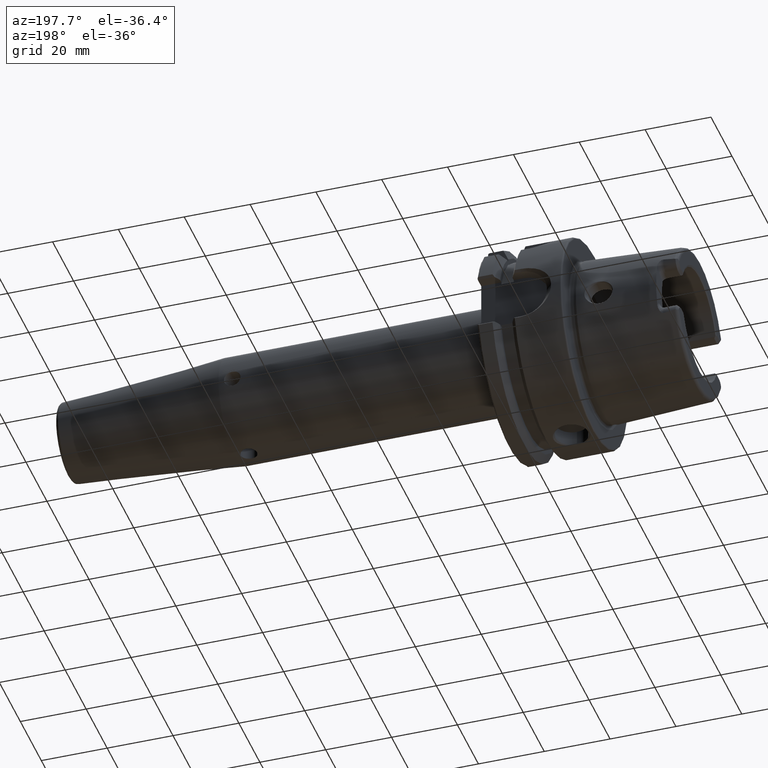
[diagram: clean part render]
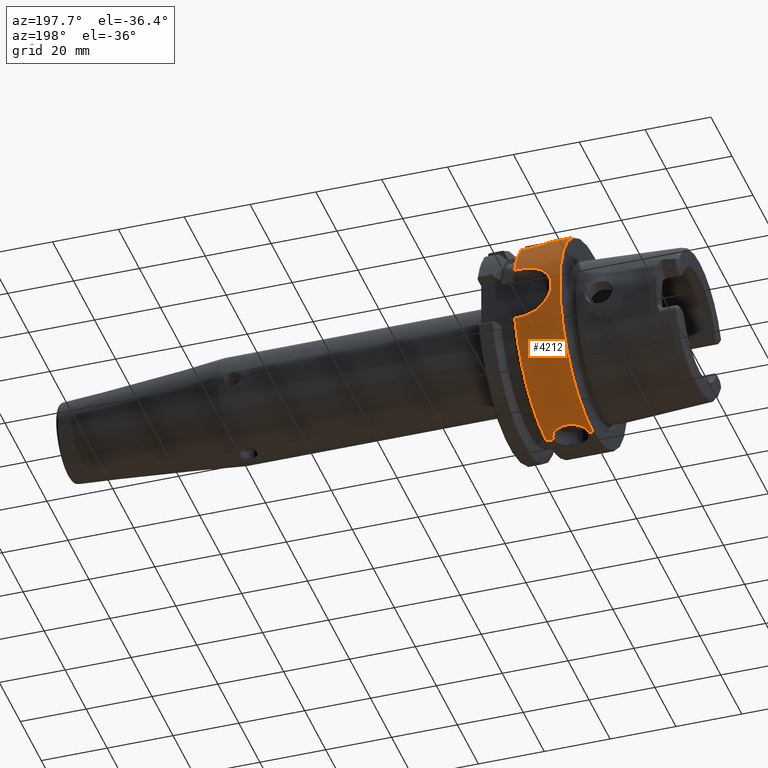
[diagram: same view with one face highlighted and labeled with its STEP entity id]
A machine part, auxiliary view. The second image highlights one B-rep face of the part: STEP entity #4212.
In plain terms, the highlighted cylindrical surface (partial cylindrical patch) has radius 31.5 mm, axis along (1, 0, 0).
Its self-contained STEP definition (entity closure, byte-faithful):
#923=DIRECTION('',(-1.E0,-1.152682623977E-12,0.E0));
#924=VECTOR('',#923,1.412250090457E1);
#925=CARTESIAN_POINT('',(1.462250090457E1,0.E0,3.15E1));
#926=LINE('',#925,#924);
#982=DIRECTION('',(-1.E0,0.E0,0.E0));
#983=VECTOR('',#982,2.122500904567E0);
#984=CARTESIAN_POINT('',(1.462250090457E1,0.E0,-3.15E1));
#985=LINE('',#984,#983);
#1006=DIRECTION('',(-1.E0,-3.500340280064E-12,0.E0));
#1007=VECTOR('',#1006,1.E0);
#1008=CARTESIAN_POINT('',(1.5E0,0.E0,-3.15E1));
#1009=LINE('',#1008,#1007);
#1023=CARTESIAN_POINT('',(5.E-1,0.E0,0.E0));
#1024=DIRECTION('',(-1.E0,0.E0,0.E0));
#1025=DIRECTION('',(0.E0,0.E0,1.E0));
#1026=AXIS2_PLACEMENT_3D('',#1023,#1024,#1025);
#1028=CARTESIAN_POINT('',(1.25E1,0.E0,-3.15E1));
#1029=CARTESIAN_POINT('',(1.25E1,3.591179016958E-1,-3.15E1));
#1030=CARTESIAN_POINT('',(1.241877060514E1,1.049176716839E0,-3.148780969961E1));
#1031=CARTESIAN_POINT('',(1.208888151745E1,2.007789554012E0,-3.144033464909E1));
#1032=CARTESIAN_POINT('',(1.158303499725E1,2.863034778919E0,-3.137310892711E1));
#1033=CARTESIAN_POINT('',(1.090471174494E1,3.623449915998E0,-3.129357789396E1));
#1034=CARTESIAN_POINT('',(1.006459553458E1,4.261252464667E0,-3.121215533395E1));
#1035=CARTESIAN_POINT('',(9.088026015445E0,4.740243014212E0,-3.114207085875E1));
#1036=CARTESIAN_POINT('',(8.055144265708E0,5.024239826024E0,-3.109689332850E1));
#1037=CARTESIAN_POINT('',(6.991255526220E0,5.118492193282E0,-3.108133183436E1));
#1038=CARTESIAN_POINT('',(5.929304176130E0,5.021338939589E0,-3.109736870211E1));
#1039=CARTESIAN_POINT('',(4.897654838810E0,4.734729497616E0,-3.114291627253E1));
#1040=CARTESIAN_POINT('',(3.923322314250E0,4.253904907756E0,-3.121317796639E1));
#1041=CARTESIAN_POINT('',(3.081999010349E0,3.611475324829E0,-3.129499592086E1));
#1042=CARTESIAN_POINT('',(2.405524185626E0,2.847462453288E0,-3.137455446046E1));
#1043=CARTESIAN_POINT('',(1.903178736620E0,1.990202842849E0,-3.144144823364E1));
#1044=CARTESIAN_POINT('',(1.578888425808E0,1.035924841317E0,-3.148816306394E1));
#1045=CARTESIAN_POINT('',(1.5E0,3.538898695661E-1,-3.15E1));
#1046=CARTESIAN_POINT('',(1.5E0,0.E0,-3.15E1));
#1048=CARTESIAN_POINT('',(1.462250090457E1,0.E0,0.E0));
#1049=DIRECTION('',(1.E0,0.E0,0.E0));
#1050=DIRECTION('',(0.E0,0.E0,-1.E0));
#1051=AXIS2_PLACEMENT_3D('',#1048,#1049,#1050);
#1053=DIRECTION('',(1.E0,0.E0,0.E0));
#1054=VECTOR('',#1053,1.622500904567E0);
#1055=CARTESIAN_POINT('',(1.3E1,3.030257052423E1,-8.602570524226E0));
#1056=LINE('',#1055,#1054);
#1057=CARTESIAN_POINT('',(1.3E1,3.030257052423E1,-8.602570524226E0));
#1058=CARTESIAN_POINT('',(1.235541835287E1,3.030257052423E1,-8.602570524226E0));
#1059=CARTESIAN_POINT('',(1.109372968304E1,3.033423153458E1,-8.492196080456E0));
#1060=CARTESIAN_POINT('',(9.248264611222E0,3.046933517118E1,-8.000909647176E0));
#1061=CARTESIAN_POINT('',(7.555884268441E0,3.066964465669E1,-7.205952655409E0));
#1062=CARTESIAN_POINT('',(6.088763746981E0,3.090017764345E1,-6.155508171550E0));
#1063=CARTESIAN_POINT('',(4.907613818030E0,3.112281076593E1,-4.919449967846E0));
#1064=CARTESIAN_POINT('',(4.035296228860E0,3.130752418742E1,-3.569140413675E0));
#1065=CARTESIAN_POINT('',(3.467126615443E0,3.143679507039E1,-2.158791178254E0));
#1066=CARTESIAN_POINT('',(3.188348549717E0,3.150274417315E1,
-7.219689524247E-1));
#1067=CARTESIAN_POINT('',(3.188351309952E0,3.150274350794E1,7.219960352426E-1));
#1068=CARTESIAN_POINT('',(3.467133324851E0,3.143679352027E1,2.158810680109E0));
#1069=CARTESIAN_POINT('',(4.035299491244E0,3.130752347964E1,3.569145798460E0));
#1070=CARTESIAN_POINT('',(4.907619317801E0,3.112280964165E1,4.919457341111E0));
#1071=CARTESIAN_POINT('',(6.088770538561E0,3.090017648968E1,6.155513669787E0));
#1072=CARTESIAN_POINT('',(7.555887404237E0,3.066964426780E1,7.205954206590E0));
#1073=CARTESIAN_POINT('',(9.248266760131E0,3.046933495101E1,8.000910488809E0));
#1074=CARTESIAN_POINT('',(1.109373293521E1,3.033423138205E1,8.492196614850E0));
#1075=CARTESIAN_POINT('',(1.235541965801E1,3.030257052423E1,8.602570524226E0));
#1076=CARTESIAN_POINT('',(1.3E1,3.030257052423E1,8.602570524226E0));
#1078=DIRECTION('',(1.E0,0.E0,0.E0));
#1079=VECTOR('',#1078,1.622500904567E0);
#1080=CARTESIAN_POINT('',(1.3E1,3.030257052423E1,8.602570524226E0));
#1081=LINE('',#1080,#1079);
#1082=CARTESIAN_POINT('',(1.462250090457E1,0.E0,0.E0));
#1083=DIRECTION('',(1.E0,0.E0,0.E0));
#1084=DIRECTION('',(0.E0,9.619863658485E-1,2.730974769596E-1));
#1085=AXIS2_PLACEMENT_3D('',#1082,#1083,#1084);
#1087=DIRECTION('',(1.E0,0.E0,0.E0));
#1088=VECTOR('',#1087,1.622500904567E0);
#1089=CARTESIAN_POINT('',(1.3E1,2.433618704728E1,2.E1));
#1090=LINE('',#1089,#1088);
#1091=CARTESIAN_POINT('',(5.888286096344E0,2.E1,2.433618704728E1));
#1092=CARTESIAN_POINT('',(5.979841110901E0,2.021624479285E1,2.415847244274E1));
#1093=CARTESIAN_POINT('',(6.178964055433E0,2.063505528873E1,2.380463264103E1));
#1094=CARTESIAN_POINT('',(6.529290349012E0,2.122336114799E1,2.328123619400E1));
#1095=CARTESIAN_POINT('',(6.934185786704E0,2.177041926319E1,2.277004743860E1));
#1096=CARTESIAN_POINT('',(7.395470581921E0,2.227363444044E1,2.227755184076E1));
#1097=CARTESIAN_POINT('',(7.915511267172E0,2.273117164906E1,2.180996325233E1));
#1098=CARTESIAN_POINT('',(8.494651142790E0,2.313957745525E1,2.137559509570E1));
#1099=CARTESIAN_POINT('',(9.133373456560E0,2.349590004479E1,2.098269866103E1));
#1100=CARTESIAN_POINT('',(9.827602999986E0,2.379530983774E1,2.064193255373E1));
#1101=CARTESIAN_POINT('',(1.057250362730E1,2.403390563889E1,2.036307977068E1));
#1102=CARTESIAN_POINT('',(1.135757184338E1,2.420737036833E1,2.015610491514E1));
#1103=CARTESIAN_POINT('',(1.217313527813E1,2.431273139834E1,2.002859294578E1));
#1104=CARTESIAN_POINT('',(1.272260838370E1,2.433618704728E1,2.E1));
#1105=CARTESIAN_POINT('',(1.3E1,2.433618704728E1,2.E1));
#1107=DIRECTION('',(1.E0,0.E0,0.E0));
#1108=VECTOR('',#1107,8.734214808223E0);
#1109=CARTESIAN_POINT('',(5.888286096344E0,2.E1,2.433618704728E1));
#1110=LINE('',#1109,#1108);
#1111=CARTESIAN_POINT('',(1.462250090457E1,0.E0,0.E0));
#1112=DIRECTION('',(1.E0,0.E0,0.E0));
#1113=DIRECTION('',(0.E0,6.349206349206E-1,7.725773665802E-1));
#1114=AXIS2_PLACEMENT_3D('',#1111,#1112,#1113);
#2821=CARTESIAN_POINT('',(5.888286096344E0,2.E1,2.433618704728E1));
#2822=CARTESIAN_POINT('',(1.462250090457E1,2.E1,2.433618704728E1));
#2823=VERTEX_POINT('',#2821);
#2824=VERTEX_POINT('',#2822);
#2825=CARTESIAN_POINT('',(1.3E1,2.433618704728E1,2.E1));
#2826=CARTESIAN_POINT('',(1.462250090457E1,2.433618704728E1,2.E1));
#2827=VERTEX_POINT('',#2825);
#2828=VERTEX_POINT('',#2826);
#2841=CARTESIAN_POINT('',(1.462250090457E1,0.E0,3.15E1));
#2842=VERTEX_POINT('',#2841);
#2984=VERTEX_POINT('',#1028);
#2985=VERTEX_POINT('',#1046);
#2994=CARTESIAN_POINT('',(1.462250090457E1,0.E0,-3.15E1));
#2995=VERTEX_POINT('',#2994);
#3041=CARTESIAN_POINT('',(1.3E1,3.030257052423E1,8.602570524226E0));
#3042=CARTESIAN_POINT('',(1.462250090457E1,3.030257052423E1,8.602570524226E0));
#3043=VERTEX_POINT('',#3041);
#3044=VERTEX_POINT('',#3042);
#3045=VERTEX_POINT('',#1057);
#3046=CARTESIAN_POINT('',(1.462250090457E1,3.030257052423E1,-8.602570524226E0));
#3047=VERTEX_POINT('',#3046);
#3066=CARTESIAN_POINT('',(5.E-1,0.E0,3.15E1));
#3067=CARTESIAN_POINT('',(5.E-1,0.E0,-3.15E1));
#3068=VERTEX_POINT('',#3066);
#3069=VERTEX_POINT('',#3067);
#4181=CARTESIAN_POINT('',(0.E0,0.E0,0.E0));
#4182=DIRECTION('',(1.E0,0.E0,0.E0));
#4183=DIRECTION('',(0.E0,0.E0,1.E0));
#4184=AXIS2_PLACEMENT_3D('',#4181,#4182,#4183);
#4185=CYLINDRICAL_SURFACE('',#4184,3.15E1);
#4187=ORIENTED_EDGE('',*,*,#4186,.T.);
#4188=ORIENTED_EDGE('',*,*,#4145,.F.);
#4190=ORIENTED_EDGE('',*,*,#4189,.F.);
#4191=ORIENTED_EDGE('',*,*,#4141,.F.);
#4193=ORIENTED_EDGE('',*,*,#4192,.T.);
#4194=ORIENTED_EDGE('',*,*,#4155,.F.);
#4196=ORIENTED_EDGE('',*,*,#4195,.T.);
#4198=ORIENTED_EDGE('',*,*,#4197,.T.);
#4200=ORIENTED_EDGE('',*,*,#4199,.T.);
#4202=ORIENTED_EDGE('',*,*,#4201,.F.);
#4204=ORIENTED_EDGE('',*,*,#4203,.F.);
#4206=ORIENTED_EDGE('',*,*,#4205,.T.);
#4208=ORIENTED_EDGE('',*,*,#4207,.T.);
#4209=ORIENTED_EDGE('',*,*,#4125,.T.);
#4210=EDGE_LOOP('',(#4187,#4188,#4190,#4191,#4193,#4194,#4196,#4198,#4200,#4202,
#4204,#4206,#4208,#4209));
#4211=FACE_OUTER_BOUND('',#4210,.F.);
#4212=ADVANCED_FACE('',(#4211),#4185,.T.);
#1027=CIRCLE('',#1026,3.15E1);
#1047=B_SPLINE_CURVE_WITH_KNOTS('',3,(#1028,#1029,#1030,#1031,#1032,#1033,#1034,
#1035,#1036,#1037,#1038,#1039,#1040,#1041,#1042,#1043,#1044,#1045,#1046),
.UNSPECIFIED.,.F.,.F.,(4,1,1,1,1,1,1,1,1,1,1,1,1,1,1,1,4),(0.E0,6.25E-2,1.25E-1,
1.875E-1,2.5E-1,3.125E-1,3.75E-1,4.375E-1,5.E-1,5.625E-1,6.25E-1,6.875E-1,
7.5E-1,8.125E-1,8.75E-1,9.375E-1,1.E0),.UNSPECIFIED.);
#1052=CIRCLE('',#1051,3.15E1);
#1077=B_SPLINE_CURVE_WITH_KNOTS('',3,(#1057,#1058,#1059,#1060,#1061,#1062,#1063,
#1064,#1065,#1066,#1067,#1068,#1069,#1070,#1071,#1072,#1073,#1074,#1075,#1076),
.UNSPECIFIED.,.F.,.F.,(4,1,1,1,1,1,1,1,1,1,1,1,1,1,1,1,1,4),(0.E0,
5.882352941176E-2,1.176470588235E-1,1.764705882353E-1,2.352941176471E-1,
2.941176470588E-1,3.529411764706E-1,4.117647058824E-1,4.705882352941E-1,
5.294117647059E-1,5.882352941176E-1,6.470588235294E-1,7.058823529412E-1,
7.647058823529E-1,8.235294117647E-1,8.823529411765E-1,9.411764705882E-1,1.E0),
.UNSPECIFIED.);
#1086=CIRCLE('',#1085,3.15E1);
#1106=B_SPLINE_CURVE_WITH_KNOTS('',3,(#1091,#1092,#1093,#1094,#1095,#1096,#1097,
#1098,#1099,#1100,#1101,#1102,#1103,#1104,#1105),.UNSPECIFIED.,.F.,.F.,(4,1,1,1,
1,1,1,1,1,1,1,1,4),(0.E0,8.333333333333E-2,1.666666666667E-1,2.5E-1,
3.333333333333E-1,4.166666666667E-1,5.E-1,5.833333333333E-1,6.666666666667E-1,
7.5E-1,8.333333333333E-1,9.166666666667E-1,1.E0),.UNSPECIFIED.);
#1115=CIRCLE('',#1114,3.15E1);
#4125=EDGE_CURVE('',#2842,#3068,#926,.T.);
#4141=EDGE_CURVE('',#2995,#2984,#985,.T.);
#4145=EDGE_CURVE('',#2985,#3069,#1009,.T.);
#4155=EDGE_CURVE('',#3045,#3047,#1056,.T.);
#4186=EDGE_CURVE('',#3068,#3069,#1027,.T.);
#4189=EDGE_CURVE('',#2984,#2985,#1047,.T.);
#4192=EDGE_CURVE('',#2995,#3047,#1052,.T.);
#4195=EDGE_CURVE('',#3045,#3043,#1077,.T.);
#4197=EDGE_CURVE('',#3043,#3044,#1081,.T.);
#4199=EDGE_CURVE('',#3044,#2828,#1086,.T.);
#4201=EDGE_CURVE('',#2827,#2828,#1090,.T.);
#4203=EDGE_CURVE('',#2823,#2827,#1106,.T.);
#4205=EDGE_CURVE('',#2823,#2824,#1110,.T.);
#4207=EDGE_CURVE('',#2824,#2842,#1115,.T.);